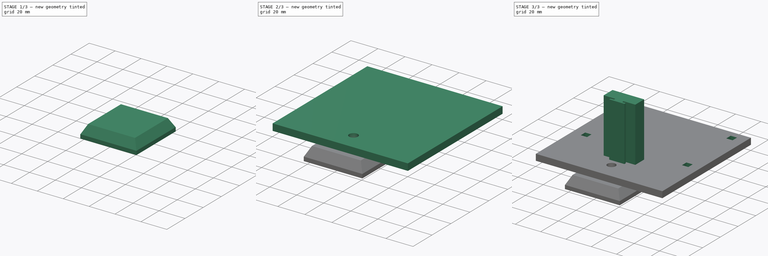
[diagram: build sequence overview — one tinted view per stage of 3, left to right]
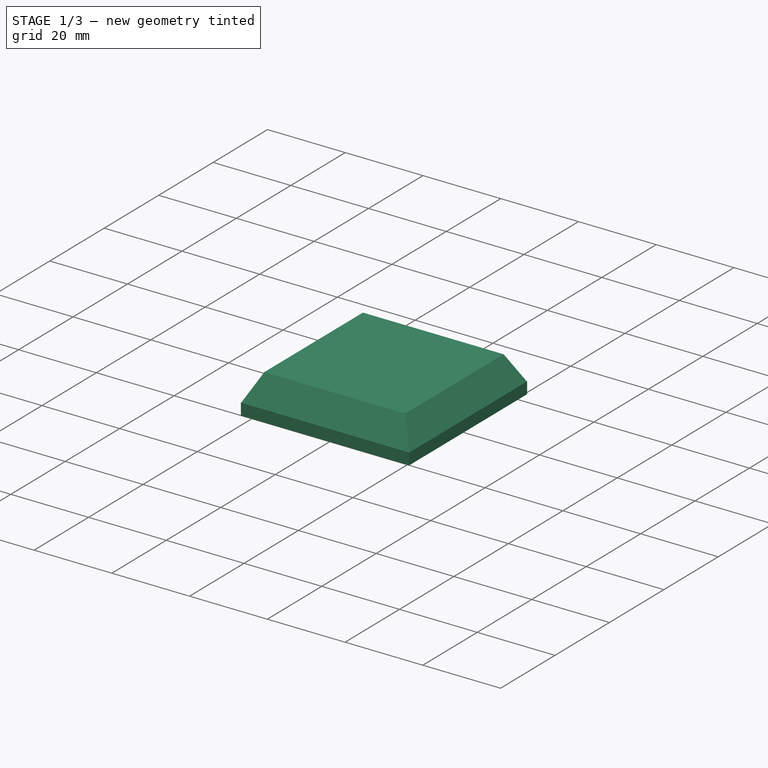
[diagram: stage 1 of 3 — iso view after this stage's code; geometry added in this stage tinted green]
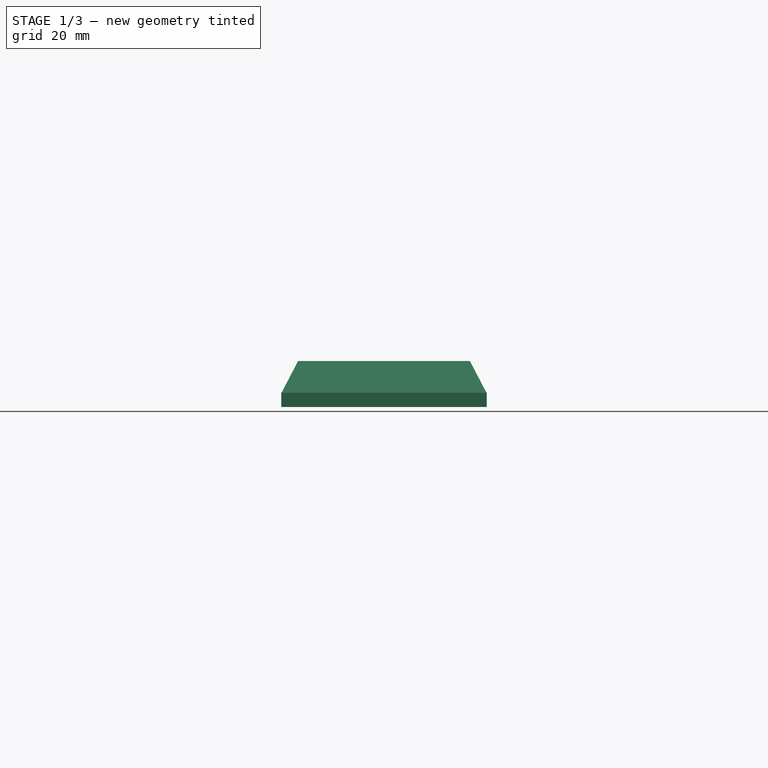
[diagram: stage 1 of 3 — front view after this stage's code; geometry added in this stage tinted green]
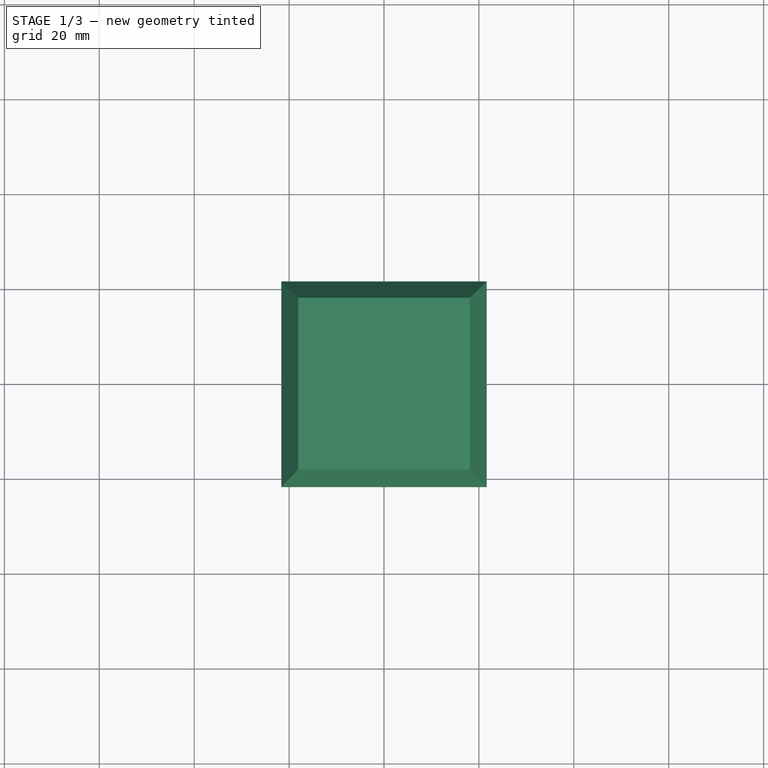
[diagram: stage 1 of 3 — top view after this stage's code; geometry added in this stage tinted green]
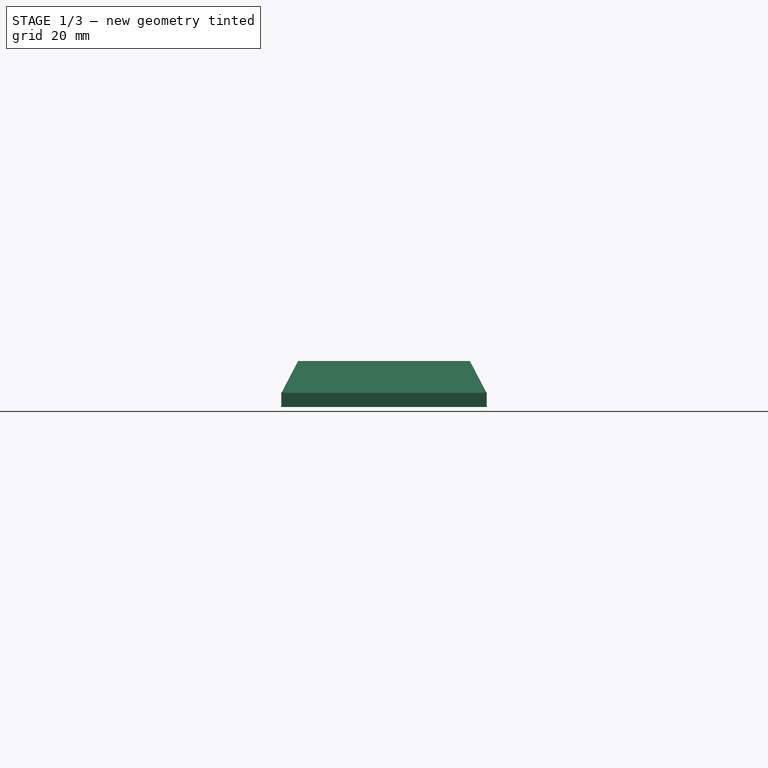
[diagram: stage 1 of 3 — right view after this stage's code; geometry added in this stage tinted green]
FCSTD DOCUMENT  (FreeCAD 0.19R)
Label: fpv_monitor
License: All rights reserved
LicenseURL: http://en.wikipedia.org/wiki/All_rights_reserved
objects: Sketcher::SketchObject×6, PartDesign::Pad×3, PartDesign::Pocket×3, PartDesign::AdditiveWedge×1, PartDesign::Body×1
note: 21 computed .brp shape members not serialized (recipe doc carries the construction recipe); baked Part::Feature solids carry a one-line shape summary decoded from their .brp

FEATURE [Sketcher::SketchObject] Sketch
  FullyConstrained = true
  MapMode = 5
  Support = -> [XY_Plane]
  sketch-geometry (4):
    g0: LineSegment StartX=-21.65 StartY=21.65 StartZ=0 EndX=21.65 EndY=21.65 EndZ=0
    g1: LineSegment StartX=21.65 StartY=21.65 StartZ=0 EndX=21.65 EndY=-21.65 EndZ=0
    g2: LineSegment StartX=21.65 StartY=-21.65 StartZ=0 EndX=-21.65 EndY=-21.65 EndZ=0
    g3: LineSegment StartX=-21.65 StartY=-21.65 StartZ=0 EndX=-21.65 EndY=21.65 EndZ=0
  constraints (10):
    c: Coincident(g0,g1)
    c: Coincident(g1,g2)
    c: Coincident(g2,g3)
    c: Coincident(g3,g0)
    c: Horizontal(g2)
    c: Vertical(g3)
    c: DistanceY(g1,g1) = 43.3
    c: DistanceX(g0,g0) = 43.3
    c: Symmetric(g0,g0,g-2)
    c: Symmetric(g1,g0,g-1)
FEATURE [PartDesign::Pad] Pad
  Direction = (1,1,1)
  Length = 3
  Length2 = 100
  Profile = -> Sketch
  Type = 0
FEATURE [PartDesign::AdditiveWedge] Wedge
  AttacherType = Attacher::AttachEngine3D
  AttachmentOffset = pos=(0,0,0) rot=(1,0,0;1.5708rad)
  BaseFeature = -> Pad
  MapMode = 5
  Placement = pos=(0,0,3) rot=(1,0,0;1.5708rad)
  Support = -> [Pad]
  X2max = 18.1
  X2min = -18.1
  Xmax = 21.6
  Xmin = -21.6
  Ymax = 6.7
  Ymin = 0
  Z2max = 18.1
  Z2min = -18.1
  Zmax = 21.6
  Zmin = -21.6
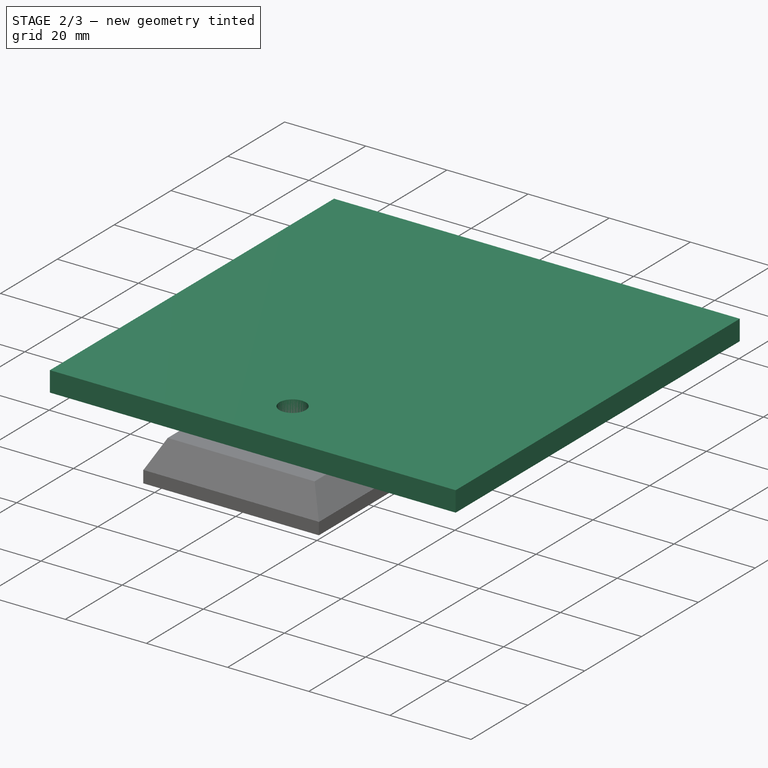
[diagram: stage 2 of 3 — iso view after this stage's code; geometry added in this stage tinted green]
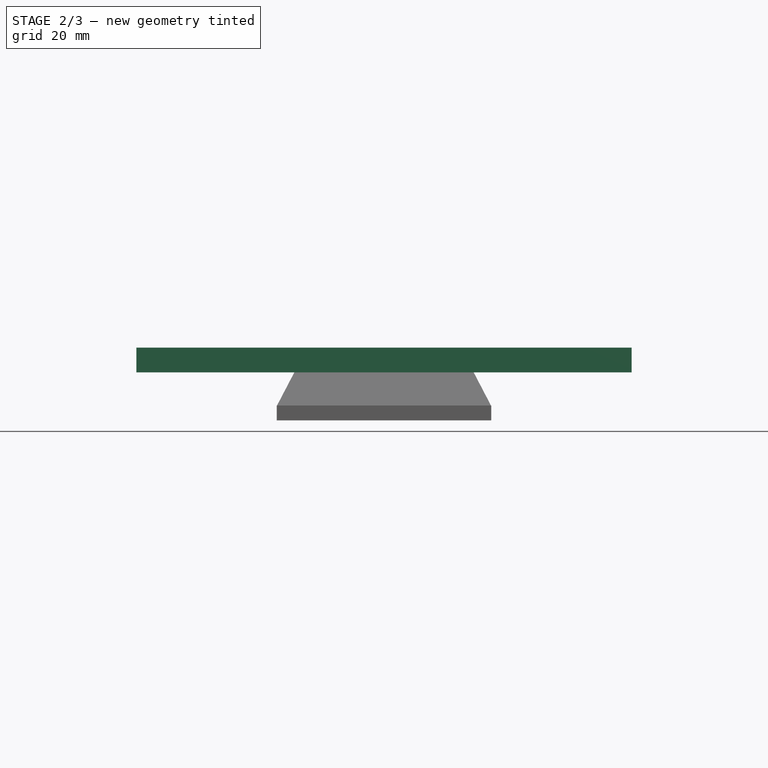
[diagram: stage 2 of 3 — front view after this stage's code; geometry added in this stage tinted green]
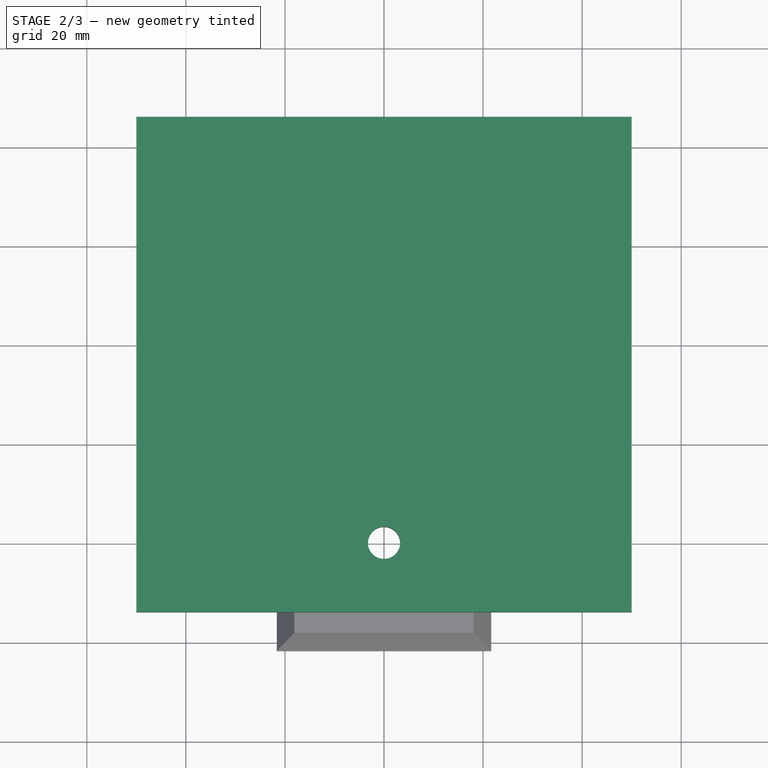
[diagram: stage 2 of 3 — top view after this stage's code; geometry added in this stage tinted green]
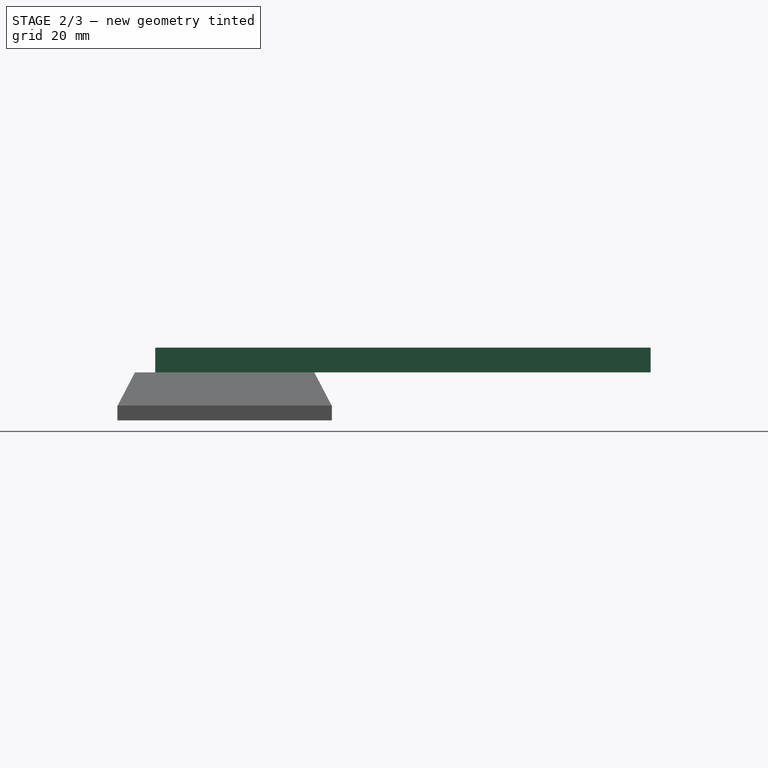
[diagram: stage 2 of 3 — right view after this stage's code; geometry added in this stage tinted green]
FEATURE [Sketcher::SketchObject] Sketch001
  FullyConstrained = true
  MapMode = 5
  Placement = pos=(0,1.5e-15,9.7) rot=(0,0,1;3.14159rad)
  Support = -> [Wedge]
  sketch-geometry (4):
    g0: LineSegment StartX=-50 StartY=14 StartZ=0 EndX=50 EndY=14 EndZ=0
    g1: LineSegment StartX=50 StartY=14 StartZ=0 EndX=50 EndY=-86 EndZ=0
    g2: LineSegment StartX=50 StartY=-86 StartZ=0 EndX=-50 EndY=-86 EndZ=0
    g3: LineSegment StartX=-50 StartY=-86 StartZ=0 EndX=-50 EndY=14 EndZ=0
  constraints (11):
    c: Coincident(g0,g1)
    c: Coincident(g1,g2)
    c: Coincident(g2,g3)
    c: Coincident(g3,g0)
    c: Horizontal(g2)
    c: Vertical(g1)
    c: Vertical(g3)
    c: DistanceY(g1,g1) = 100
    c: DistanceY(g-1,g0) = 14
    c: Symmetric(g0,g0,g-2)
    c: DistanceX(g0,g0) = 100
FEATURE [PartDesign::Pad] Pad001
  BaseFeature = -> Wedge
  Direction = (1,1,1)
  Length = 5
  Length2 = 100
  Placement = pos=(0,0,3) rot=(1,0,0;1.5708rad)
  Profile = -> Sketch001
  Type = 0
FEATURE [Sketcher::SketchObject] Sketch002
  FullyConstrained = true
  MapMode = 5
  Placement = pos=(0,-7e-16,0) rot=(1,0,0;3.14159rad)
  Support = -> [Pad001]
  sketch-geometry (1):
    g0: Circle CenterX=0 CenterY=0 CenterZ=0 NormalX=0 NormalY=0 NormalZ=1 AngleXU=0 Radius=3.25
  constraints (2):
    c: Coincident(g0,g-1)
    c: Diameter(g0) = 6.5
FEATURE [PartDesign::Pocket] Pocket
  BaseFeature = -> Pad001
  Length = 5
  Length2 = 100
  Placement = pos=(0,0,3) rot=(1,0,0;1.5708rad)
  Profile = -> Sketch002
  Type = 1
FEATURE [Sketcher::SketchObject] Sketch003
  FullyConstrained = true
  MapMode = 5
  Placement = pos=(0,-1e-15,0) rot=(1,0,0;3.14159rad)
  Support = -> [Pocket]
  sketch-geometry (1):
    g0: Circle CenterX=0 CenterY=0 CenterZ=0 NormalX=0 NormalY=0 NormalZ=1 AngleXU=0 Radius=9
  constraints (2):
    c: Coincident(g0,g-1)
    c: Diameter(g0) = 18
FEATURE [PartDesign::Pocket] Pocket001
  BaseFeature = -> Pocket
  Length = 7
  Length2 = 100
  Placement = pos=(0,0,3) rot=(1,0,0;1.5708rad)
  Profile = -> Sketch003
  Type = 0
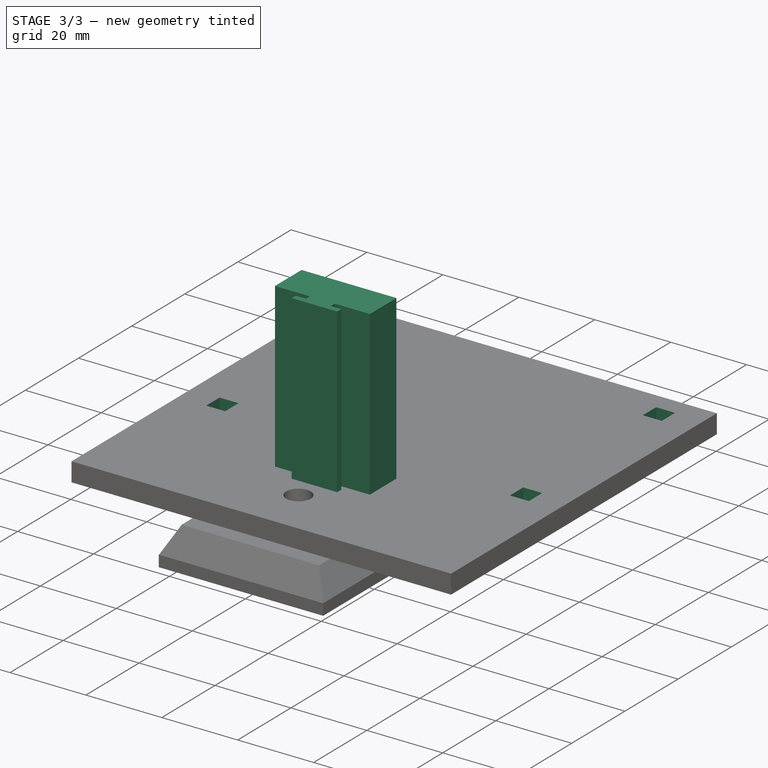
[diagram: stage 3 of 3 — iso view after this stage's code; geometry added in this stage tinted green]
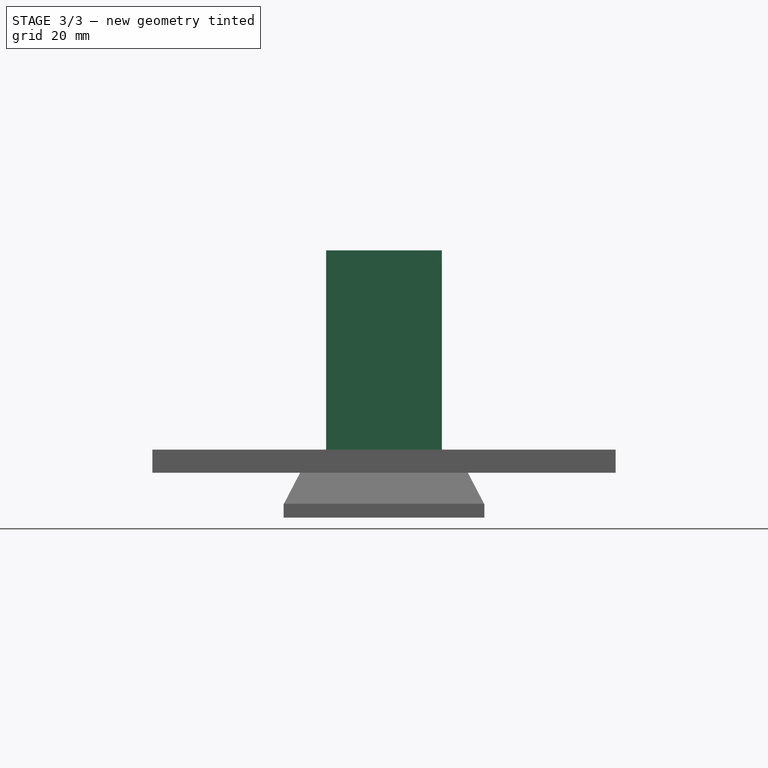
[diagram: stage 3 of 3 — front view after this stage's code; geometry added in this stage tinted green]
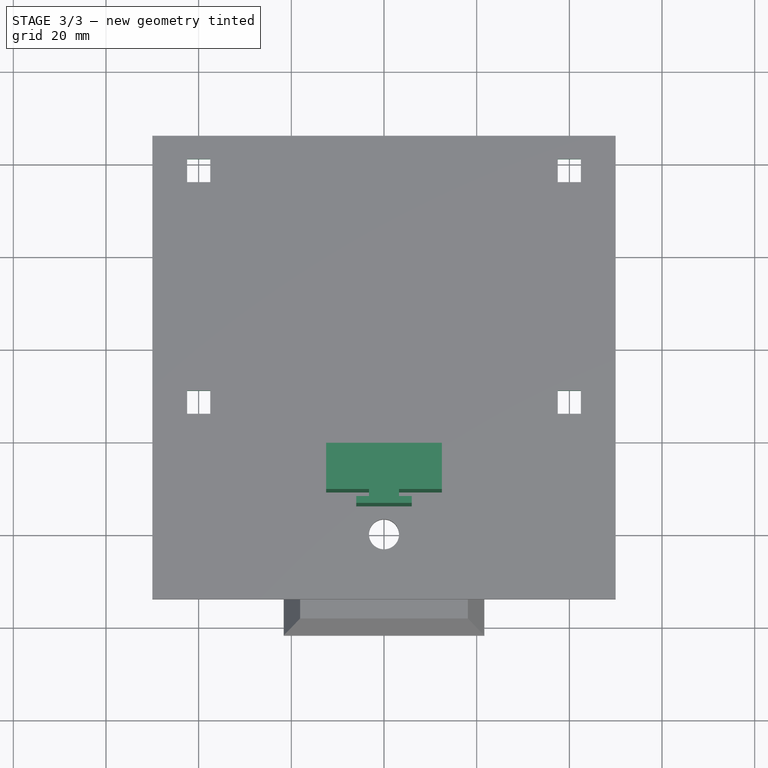
[diagram: stage 3 of 3 — top view after this stage's code; geometry added in this stage tinted green]
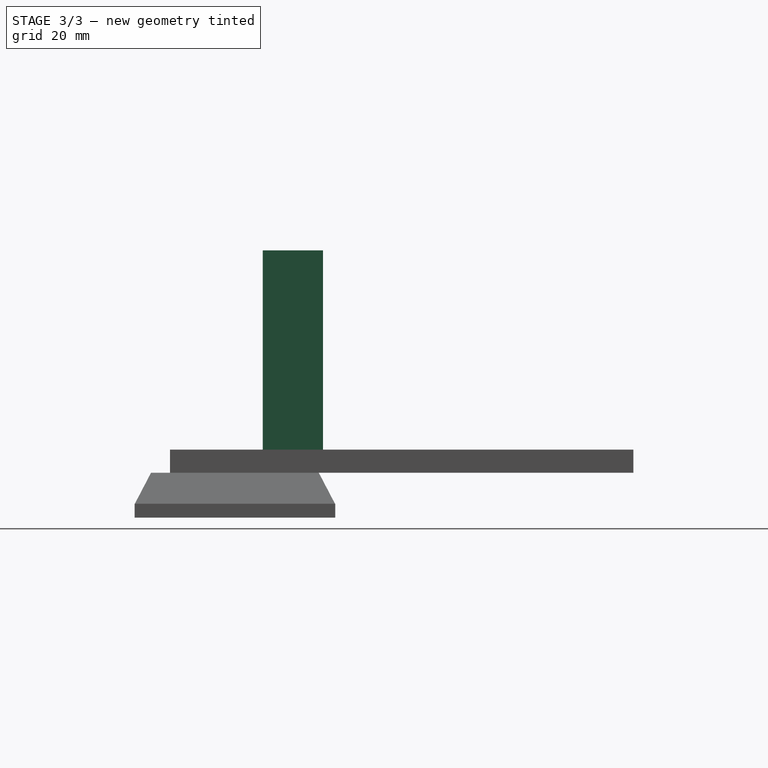
[diagram: stage 3 of 3 — right view after this stage's code; geometry added in this stage tinted green]
FEATURE [Sketcher::SketchObject] Sketch004
  FullyConstrained = true
  MapMode = 5
  Placement = pos=(0,6.6e-15,14.7) rot=(0,0,1;3.14159rad)
  Support = -> [Pocket001]
  sketch-geometry (12):
    g0: LineSegment StartX=-6 StartY=-6 StartZ=0 EndX=6 EndY=-6 EndZ=0
    g1: LineSegment StartX=6 StartY=-6 StartZ=0 EndX=6 EndY=-7.5 EndZ=0
    g2: LineSegment StartX=6 StartY=-7.5 StartZ=0 EndX=3.25 EndY=-7.5 EndZ=0
    g3: LineSegment StartX=3.25 StartY=-7.5 StartZ=0 EndX=3.25 EndY=-9 EndZ=0
    g4: LineSegment StartX=3.25 StartY=-9 StartZ=0 EndX=12.5 EndY=-9 EndZ=0
    g5: LineSegment StartX=12.5 StartY=-9 StartZ=0 EndX=12.5 EndY=-19 EndZ=0
    g6: LineSegment StartX=12.5 StartY=-19 StartZ=0 EndX=-12.5 EndY=-19 EndZ=0
    g7: LineSegment StartX=-12.5 StartY=-19 StartZ=0 EndX=-12.5 EndY=-9 EndZ=0
    g8: LineSegment StartX=-12.5 StartY=-9 StartZ=0 EndX=-3.25 EndY=-9 EndZ=0
    g9: LineSegment StartX=-3.25 StartY=-9 StartZ=0 EndX=-3.25 EndY=-7.5 EndZ=0
    g10: LineSegment StartX=-3.25 StartY=-7.5 StartZ=0 EndX=-6 EndY=-7.5 EndZ=0
    g11: LineSegment StartX=-6 StartY=-7.5 StartZ=0 EndX=-6 EndY=-6 EndZ=0
  constraints (32):
    c: Coincident(g0,g1)
    c: Vertical(g1)
    c: Coincident(g1,g2)
    c: Horizontal(g2)
    c: Coincident(g2,g3)
    c: Vertical(g3)
    c: Coincident(g3,g4)
    c: Horizontal(g4)
    c: Coincident(g4,g5)
    c: Vertical(g5)
    c: Coincident(g5,g6)
    c: Coincident(g6,g7)
    c: Vertical(g7)
    c: Coincident(g7,g8)
    c: Horizontal(g8)
    c: Coincident(g8,g9)
    c: Coincident(g9,g10)
    c: Horizontal(g10)
    c: Coincident(g10,g11)
    c: Vertical(g11)
    c: Coincident(g0,g11)
    c: Symmetric(g0,g0,g-2)
    c: Symmetric(g9,g2,g-2)
    c: DistanceY(g1,g1) = 1.5
    c: DistanceY(g1,g-1) = 7.5
    c: Symmetric(g8,g3,g-2)
    c: Symmetric(g6,g5,g-2)
    c: DistanceX(g8,g3) = 6.5
    c: DistanceX(g0,g0) = 12
    c: DistanceY(g3,g3) = 1.5
    c: DistanceY(g5,g5) = 10
    c: DistanceX(g6,g6) = 25
FEATURE [PartDesign::Pad] Pad002
  BaseFeature = -> Pocket001
  Direction = (1,1,1)
  Length = 43
  Length2 = 100
  Placement = pos=(0,0,3) rot=(1,0,0;1.5708rad)
  Profile = -> Sketch004
  Type = 0
FEATURE [Sketcher::SketchObject] Sketch005
  ExternalGeometry = -> [Pad002]
  FullyConstrained = true
  MapMode = 5
  Placement = pos=(0,7.9e-15,14.7) rot=(0,0,1;3.14159rad)
  Support = -> [Pad002]
  sketch-geometry (16):
    g0: LineSegment StartX=-42.5 StartY=-76 StartZ=0 EndX=-37.5 EndY=-76 EndZ=0
    g1: LineSegment StartX=-37.5 StartY=-76 StartZ=0 EndX=-37.5 EndY=-81 EndZ=0
    g2: LineSegment StartX=-37.5 StartY=-81 StartZ=0 EndX=-42.5 EndY=-81 EndZ=0
    g3: LineSegment StartX=-42.5 StartY=-81 StartZ=0 EndX=-42.5 EndY=-76 EndZ=0
    g4: LineSegment StartX=37.5 StartY=-76 StartZ=0 EndX=42.5 EndY=-76 EndZ=0
    g5: LineSegment StartX=42.5 StartY=-76 StartZ=0 EndX=42.5 EndY=-81 EndZ=0
    g6: LineSegment StartX=42.5 StartY=-81 StartZ=0 EndX=37.5 EndY=-81 EndZ=0
    g7: LineSegment StartX=37.5 StartY=-81 StartZ=0 EndX=37.5 EndY=-76 EndZ=0
    g8: LineSegment StartX=37.5 StartY=-26 StartZ=0 EndX=42.5 EndY=-26 EndZ=0
    g9: LineSegment StartX=42.5 StartY=-26 StartZ=0 EndX=42.5 EndY=-31 EndZ=0
    g10: LineSegment StartX=42.5 StartY=-31 StartZ=0 EndX=37.5 EndY=-31 EndZ=0
    g11: LineSegment StartX=37.5 StartY=-31 StartZ=0 EndX=37.5 EndY=-26 EndZ=0
    g12: LineSegment StartX=-42.5 StartY=-26 StartZ=0 EndX=-37.5 EndY=-26 EndZ=0
    g13: LineSegment StartX=-37.5 StartY=-26 StartZ=0 EndX=-37.5 EndY=-31 EndZ=0
    g14: LineSegment StartX=-37.5 StartY=-31 StartZ=0 EndX=-42.5 EndY=-31 EndZ=0
    g15: LineSegment StartX=-42.5 StartY=-31 StartZ=0 EndX=-42.5 EndY=-26 EndZ=0
  constraints (46):
    c: Coincident(g0,g1)
    c: Coincident(g1,g2)
    c: Coincident(g2,g3)
    c: Coincident(g3,g0)
    c: Horizontal(g0)
    c: Horizontal(g2)
    c: Vertical(g1)
    c: Vertical(g3)
    c: Coincident(g4,g5)
    c: Coincident(g5,g6)
    c: Coincident(g6,g7)
    c: Coincident(g7,g4)
    c: Horizontal(g4)
    c: Horizontal(g6)
    c: Vertical(g5)
    c: Vertical(g7)
    c: Coincident(g8,g9)
    c: Coincident(g9,g10)
    c: Coincident(g10,g11)
    c: Coincident(g11,g8)
    c: Horizontal(g8)
    c: Horizontal(g10)
    c: Vertical(g9)
    c: Vertical(g11)
    c: Coincident(g12,g13)
    c: Coincident(g13,g14)
    c: Coincident(g14,g15)
    c: Coincident(g15,g12)
    c: Horizontal(g12)
    c: Horizontal(g14)
    c: Vertical(g13)
    c: Vertical(g15)
    c: Equal(g2,g14)
    c: Equal(g14,g10)
    c: Equal(g10,g6)
    c: Equal(g1,g13)
    c: Equal(g13,g9)
    c: Equal(g9,g5)
    c: Symmetric(g1,g6,g-2)
    c: Symmetric(g10,g13,g-2)
    c: DistanceY(g-3,g2) = 5
    c: DistanceY(g-3,g9) = 55
    c: DistanceY(g15,g15) = 5
    c: DistanceX(g14,g14) = 5
    c: DistanceX(g13,g10) = 75
    c: DistanceX(g1,g6) = 75
FEATURE [PartDesign::Pocket] Pocket002
  BaseFeature = -> Pad002
  Length = 5
  Length2 = 100
  Placement = pos=(0,0,3) rot=(1,0,0;1.5708rad)
  Profile = -> Sketch005
  Type = 0
FEATURE [PartDesign::Body] Body
  Group = -> [Sketch,Pad,Wedge,Sketch001,Pad001,Sketch002,Pocket,Sketch003,Pocket001,Sketch004,Pad002,Sketch005,Pocket002]
  Origin = -> Origin
  Tip = -> Pocket002
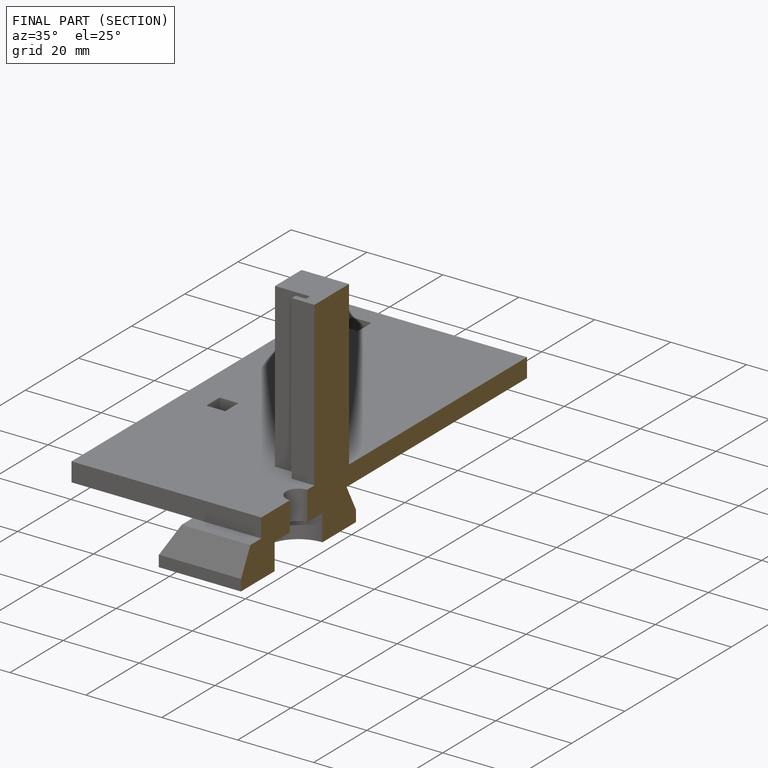
[diagram: finished part — half-section view (interior)]
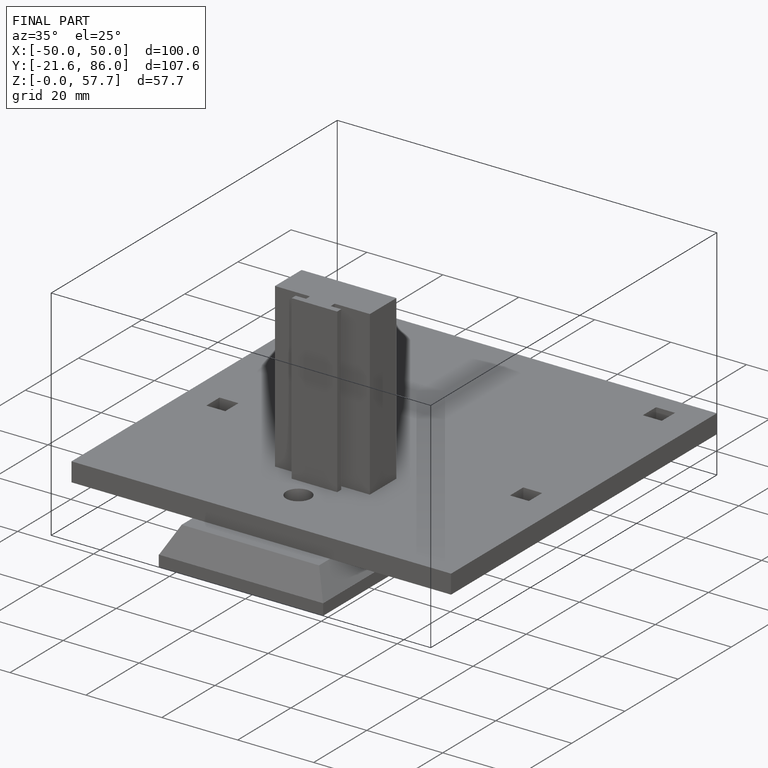
[diagram: finished part — iso view with bounding-box wireframe]
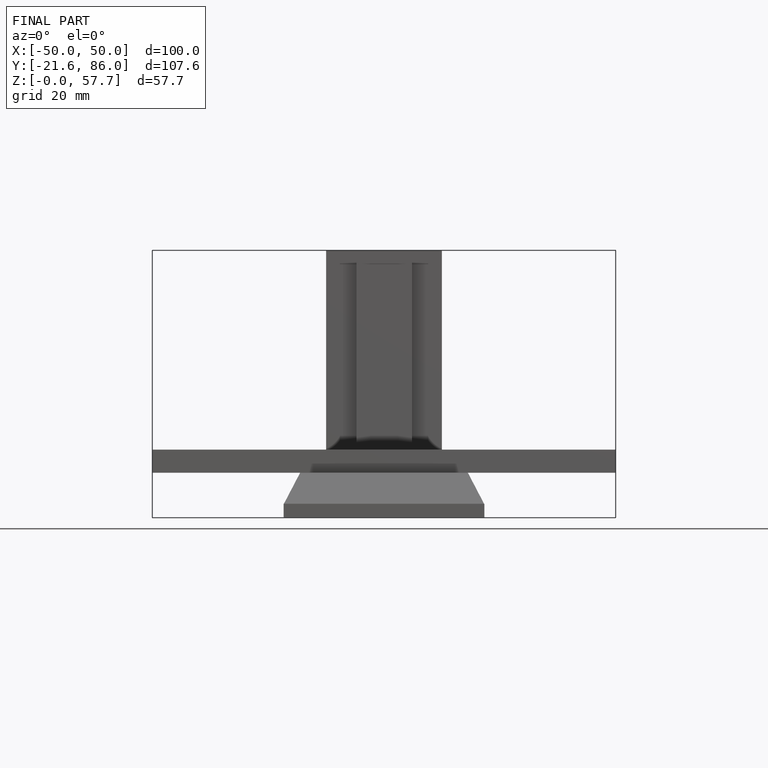
[diagram: finished part — front view with bounding-box wireframe]
